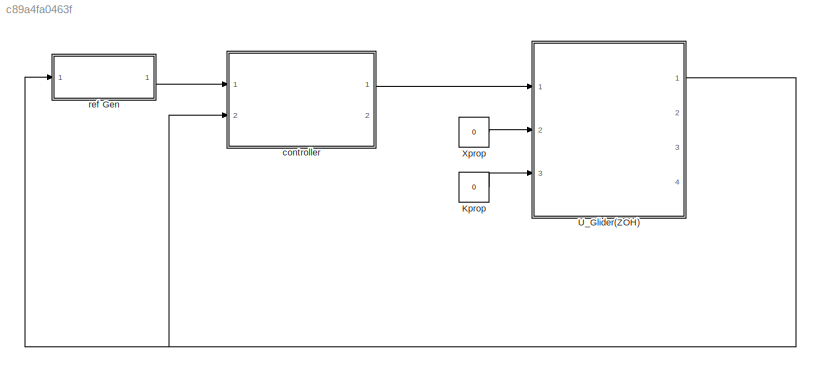
MODEL slx_c89a4fa0463f
KIND model
CONFIG AbsTol = auto
CONFIG EnableMultiTasking = off
CONFIG FixedStep = auto
CONFIG MaxStep = auto
CONFIG MinStep = auto
CONFIG RelTol = 1e-3
CONFIG SampleTimeConstraint = Unconstrained
CONFIG Solver = VariableStepAuto
CONFIG SolverName = VariableStepAuto
CONFIG StartTime = 0.0
CONFIG StopTime = 70
BLOCK [Constant] Kprop
  Value = 0
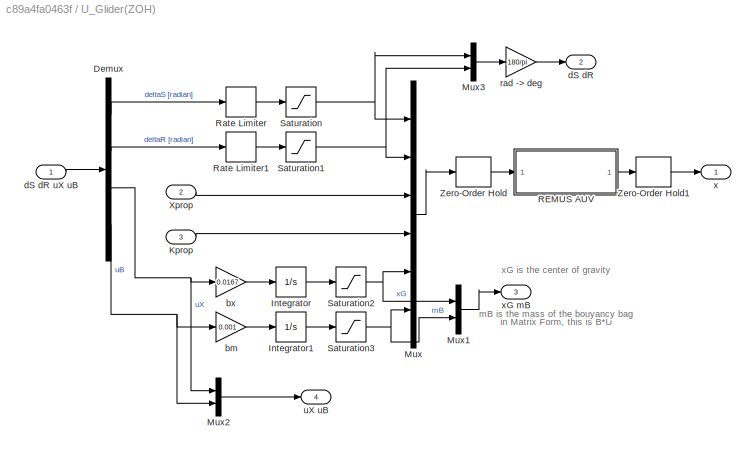
BLOCK [SubSystem] U_Glider(ZOH)
  Ports = [3, 4]
  RequestExecContextInheritance = off
BLOCK [Demux] U_Glider(ZOH)/Demux
  DisplayOption = bar
  Ports = [1, 4]
BLOCK [Integrator] U_Glider(ZOH)/Integrator
  Ports = [1, 1]
BLOCK [Integrator] U_Glider(ZOH)/Integrator1
  Ports = [1, 1]
BLOCK [Inport] U_Glider(ZOH)/Kprop
  IconDisplay = Port number
  Port = 3
BLOCK [Mux] U_Glider(ZOH)/Mux
  DisplayOption = bar
  Inputs = 6
  Ports = [6, 1]
BLOCK [Mux] U_Glider(ZOH)/Mux1
  DisplayOption = bar
  Inputs = 2
  Ports = [2, 1]
BLOCK [Mux] U_Glider(ZOH)/Mux2
  DisplayOption = bar
  Inputs = 2
  Ports = [2, 1]
BLOCK [Mux] U_Glider(ZOH)/Mux3
  DisplayOption = bar
  Inputs = 2
  Ports = [2, 1]
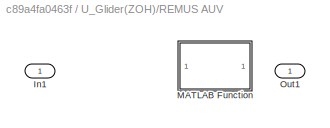
BLOCK [SubSystem] U_Glider(ZOH)/REMUS AUV
  Ports = [1, 1]
  RequestExecContextInheritance = off
BLOCK [Inport] U_Glider(ZOH)/REMUS AUV/In1
  IconDisplay = Port number
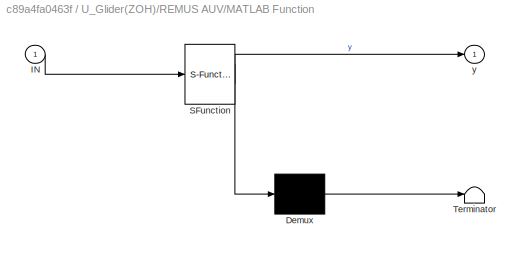
BLOCK [SubSystem] U_Glider(ZOH)/REMUS AUV/MATLAB Function
  ErrorFcn = Stateflow.Translate.translate
  PermitHierarchicalResolution = ExplicitOnly
  Ports = [1, 1]
  RequestExecContextInheritance = off
  SFBlockType = MATLAB Function
  TreatAsAtomicUnit = on
BLOCK [Demux] U_Glider(ZOH)/REMUS AUV/MATLAB Function/ Demux 
  Outputs = 1
  Ports = [1, 1]
BLOCK [S-Function] U_Glider(ZOH)/REMUS AUV/MATLAB Function/ SFunction 
  EnableBusSupport = off
  FunctionName = sf_sfun
  PortCounts = [1 2]
  Ports = [1, 2]
  SFcnIsStateOwnerBlock = off
  SFunctionDeploymentMode = off
  Tag = Stateflow S-Function 2
BLOCK [Terminator] U_Glider(ZOH)/REMUS AUV/MATLAB Function/ Terminator 
BLOCK [Inport] U_Glider(ZOH)/REMUS AUV/MATLAB Function/IN
  IconDisplay = Port number
BLOCK [Outport] U_Glider(ZOH)/REMUS AUV/MATLAB Function/y
  IconDisplay = Port number
BLOCK [Outport] U_Glider(ZOH)/REMUS AUV/Out1
  IconDisplay = Port number
BLOCK [RateLimiter] U_Glider(ZOH)/Rate Limiter
  SampleTimeMode = inherited
BLOCK [RateLimiter] U_Glider(ZOH)/Rate Limiter1
  SampleTimeMode = inherited
BLOCK [Saturate] U_Glider(ZOH)/Saturation
  InputPortMap = u0
  Ports = [1, 1]
BLOCK [Saturate] U_Glider(ZOH)/Saturation1
  InputPortMap = u0
  Ports = [1, 1]
BLOCK [Saturate] U_Glider(ZOH)/Saturation2
  InputPortMap = u0
  Ports = [1, 1]
BLOCK [Saturate] U_Glider(ZOH)/Saturation3
  InputPortMap = u0
  Ports = [1, 1]
BLOCK [Inport] U_Glider(ZOH)/Xprop
  IconDisplay = Port number
  Port = 2
BLOCK [ZeroOrderHold] U_Glider(ZOH)/Zero-Order Hold
BLOCK [ZeroOrderHold] U_Glider(ZOH)/Zero-Order Hold1
BLOCK [Gain] U_Glider(ZOH)/bm
  Gain = 0.001
  OutDataTypeStr = Inherit: Inherit via internal rule
  ParamDataTypeStr = Inherit: Inherit via internal rule
  SaturateOnIntegerOverflow = off
BLOCK [Gain] U_Glider(ZOH)/bx
  Gain = 0.0167
  OutDataTypeStr = Inherit: Inherit via internal rule
  ParamDataTypeStr = Inherit: Inherit via internal rule
  SaturateOnIntegerOverflow = off
BLOCK [Outport] U_Glider(ZOH)/dS dR
  IconDisplay = Port number
  Port = 2
BLOCK [Inport] U_Glider(ZOH)/dS dR uX uB
  IconDisplay = Port number
BLOCK [Gain] U_Glider(ZOH)/rad -> deg
  Gain = 180/pi
  OutDataTypeStr = Inherit: Inherit via internal rule
  ParamDataTypeStr = Inherit: Inherit via internal rule
  SaturateOnIntegerOverflow = off
BLOCK [Outport] U_Glider(ZOH)/uX uB
  IconDisplay = Port number
  Port = 4
BLOCK [Outport] U_Glider(ZOH)/x
  IconDisplay = Port number
BLOCK [Outport] U_Glider(ZOH)/xG mB
  IconDisplay = Port number
  Port = 3
BLOCK [Constant] Xprop
  Value = 0
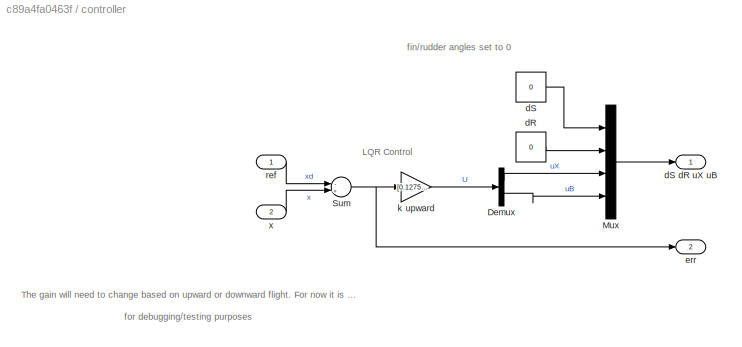
BLOCK [SubSystem] controller
  Ports = [2, 2]
  RequestExecContextInheritance = off
BLOCK [Demux] controller/Demux
  DisplayOption = bar
  Outputs = 2
  Ports = [1, 2]
BLOCK [Mux] controller/Mux
  DisplayOption = bar
  Ports = [4, 1]
BLOCK [Sum] controller/Sum
  IconShape = round
  InputSameDT = off
  Inputs = -+
  OutDataTypeStr = Inherit: Inherit via internal rule
  Ports = [2, 1]
  SaturateOnIntegerOverflow = off
BLOCK [Constant] controller/dR
  Value = 0
BLOCK [Constant] controller/dS
  Value = 0
BLOCK [Outport] controller/dS dR uX uB
  IconDisplay = Port number
BLOCK [Outport] controller/err
  IconDisplay = Port number
  Port = 2
BLOCK [Gain] controller/k upward
  Gain = [0.1275 -0.0477 -0.0021 -0.0009 0.0253 18.2666 0.4104; -0.0683 -0.0196 -0.0049 -0.0004 0.0109 6.8504 0.6195]
  Multiplication = Matrix(K*u)
  OutDataTypeStr = Inherit: Inherit via internal rule
  ParamDataTypeStr = Inherit: Inherit via internal rule
  SaturateOnIntegerOverflow = off
BLOCK [Inport] controller/ref
  IconDisplay = Port number
BLOCK [Inport] controller/x
  IconDisplay = Port number
  Port = 2
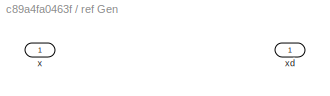
BLOCK [SubSystem] ref Gen
  Ports = [1, 1]
  RequestExecContextInheritance = off
BLOCK [Inport] ref Gen/x
  IconDisplay = Port number
BLOCK [Outport] ref Gen/xd
  IconDisplay = Port number
ANNOTATION U_Glider(ZOH): in Matrix Form, this is B*U
ANNOTATION U_Glider(ZOH): mB is the mass of the bouyancy bag
ANNOTATION U_Glider(ZOH): xG is the center of gravity
ANNOTATION controller: LQR Control
ANNOTATION controller: The gain will need to change based on upward or downward flight. For now it is set to upward
ANNOTATION controller: fin/rudder angles set to 0
ANNOTATION controller: for debugging/testing purposes
LINE Kprop:1 -> U_Glider(ZOH):3
LINE U_Glider(ZOH)/Demux:1 -> U_Glider(ZOH)/Rate Limiter:1
LINE U_Glider(ZOH)/Demux:2 -> U_Glider(ZOH)/Rate Limiter1:1
NET U_Glider(ZOH)/Demux:3 -> U_Glider(ZOH)/Mux2:1, U_Glider(ZOH)/bx:1
NET U_Glider(ZOH)/Demux:4 -> U_Glider(ZOH)/Mux2:2, U_Glider(ZOH)/bm:1
LINE U_Glider(ZOH)/Integrator1:1 -> U_Glider(ZOH)/Saturation3:1
LINE U_Glider(ZOH)/Integrator:1 -> U_Glider(ZOH)/Saturation2:1
LINE U_Glider(ZOH)/Kprop:1 -> U_Glider(ZOH)/Mux:4
LINE U_Glider(ZOH)/Mux1:1 -> U_Glider(ZOH)/xG mB:1
LINE U_Glider(ZOH)/Mux2:1 -> U_Glider(ZOH)/uX uB:1
LINE U_Glider(ZOH)/Mux3:1 -> U_Glider(ZOH)/rad -> deg:1
LINE U_Glider(ZOH)/Mux:1 -> U_Glider(ZOH)/Zero-Order Hold:1
LINE U_Glider(ZOH)/REMUS AUV:1 -> U_Glider(ZOH)/Zero-Order Hold1:1
LINE U_Glider(ZOH)/Rate Limiter1:1 -> U_Glider(ZOH)/Saturation1:1
LINE U_Glider(ZOH)/Rate Limiter:1 -> U_Glider(ZOH)/Saturation:1
NET U_Glider(ZOH)/Saturation1:1 -> U_Glider(ZOH)/Mux3:2, U_Glider(ZOH)/Mux:2
NET U_Glider(ZOH)/Saturation2:1 -> U_Glider(ZOH)/Mux1:1, U_Glider(ZOH)/Mux:5
NET U_Glider(ZOH)/Saturation3:1 -> U_Glider(ZOH)/Mux1:2, U_Glider(ZOH)/Mux:6
NET U_Glider(ZOH)/Saturation:1 -> U_Glider(ZOH)/Mux3:1, U_Glider(ZOH)/Mux:1
LINE U_Glider(ZOH)/Xprop:1 -> U_Glider(ZOH)/Mux:3
LINE U_Glider(ZOH)/Zero-Order Hold1:1 -> U_Glider(ZOH)/x:1
LINE U_Glider(ZOH)/Zero-Order Hold:1 -> U_Glider(ZOH)/REMUS AUV:1
LINE U_Glider(ZOH)/bm:1 -> U_Glider(ZOH)/Integrator1:1
LINE U_Glider(ZOH)/bx:1 -> U_Glider(ZOH)/Integrator:1
LINE U_Glider(ZOH)/dS dR uX uB:1 -> U_Glider(ZOH)/Demux:1
LINE U_Glider(ZOH)/rad -> deg:1 -> U_Glider(ZOH)/dS dR:1
NET U_Glider(ZOH):1 -> controller:2, ref Gen:1
LINE Xprop:1 -> U_Glider(ZOH):2
LINE controller/Demux:1 -> controller/Mux:3
LINE controller/Demux:2 -> controller/Mux:4
LINE controller/Mux:1 -> controller/dS dR uX uB:1
NET controller/Sum:1 -> controller/err:1, controller/k upward:1
LINE controller/dR:1 -> controller/Mux:2
LINE controller/dS:1 -> controller/Mux:1
LINE controller/k upward:1 -> controller/Demux:1
LINE controller/ref:1 -> controller/Sum:1
LINE controller/x:1 -> controller/Sum:2
LINE controller:1 -> U_Glider(ZOH):1
LINE ref Gen:1 -> controller:1
note: NET lines group one-source signal fan-out (src -> all destinations, sorted); 1:1 wires keep LINE
CHART U_Glider(ZOH)/REMUS AUV/MATLAB Function states=1 transitions=1
  STATE_LABEL 'eML_blk_kernel()'
  STATE_LABEL 'SCRIPT:\nfunction y = fcn(IN)\n%--------------------------------------------------------------------------\n% AUV Parameter Constants [units: Metric]:\nmh = 30.4791;\nmbar = 1;\nm = 32.3140;\ng = 9.81;\n\nxb = 0;\nyb = 0;\nzb = 0;\nxg = 0;\nyg = 0;\nzg = 0.02;\n\nIxx = 0.177;\nIyy = 3.45;\nIzz = 3.45;\n\nXudot = -0.93; \nZwdot = -35.5;\nZqdot = -1.93;\nYvdot = -35.5;\nYrdot = 1.93;\nXuu = -3.9;\n\nYvv = -1310;\nYrr = 0.632;\n...<+836ch>'
